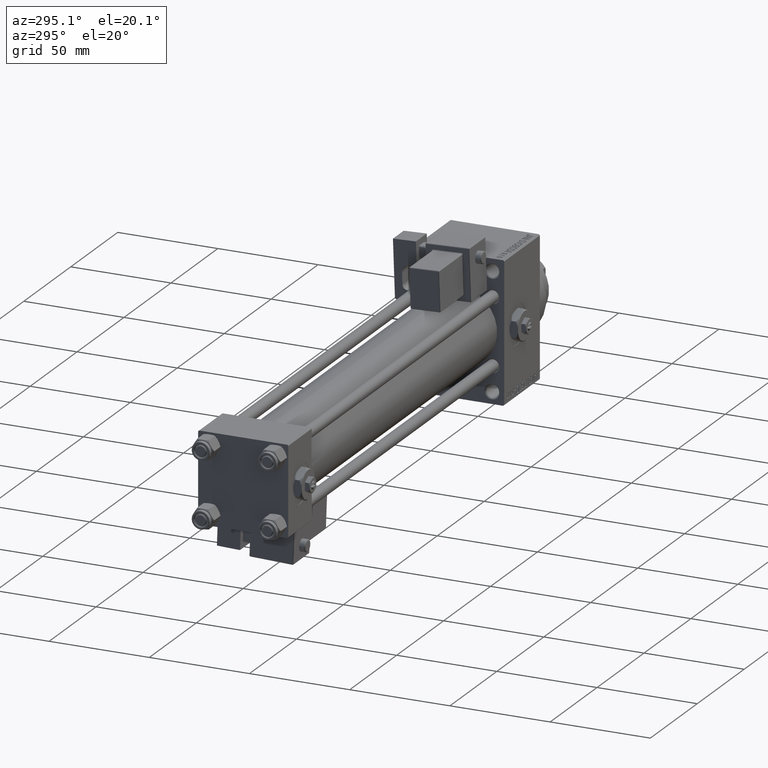
[diagram: clean part render]
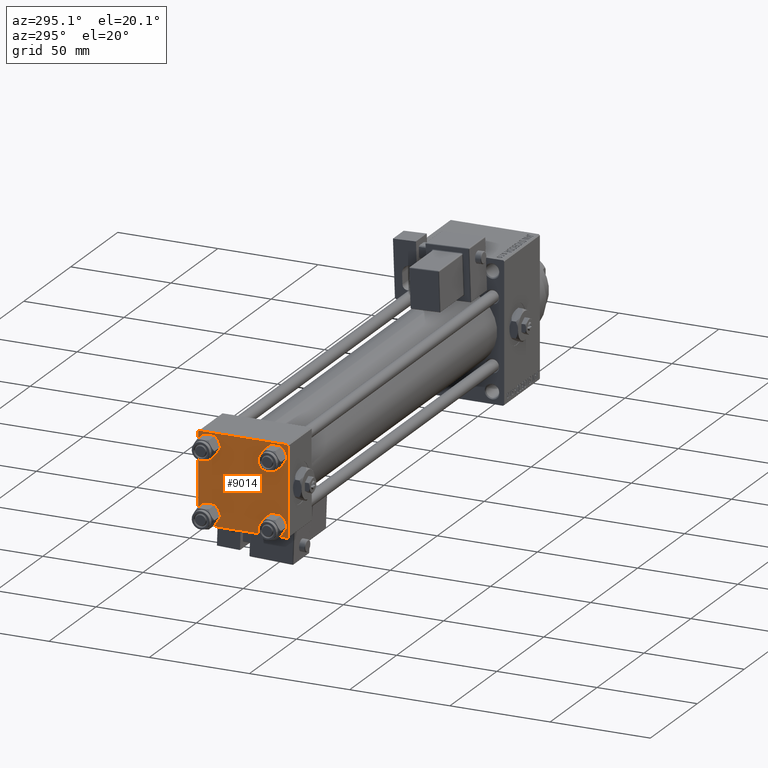
[diagram: same view with one face highlighted and labeled with its STEP entity id]
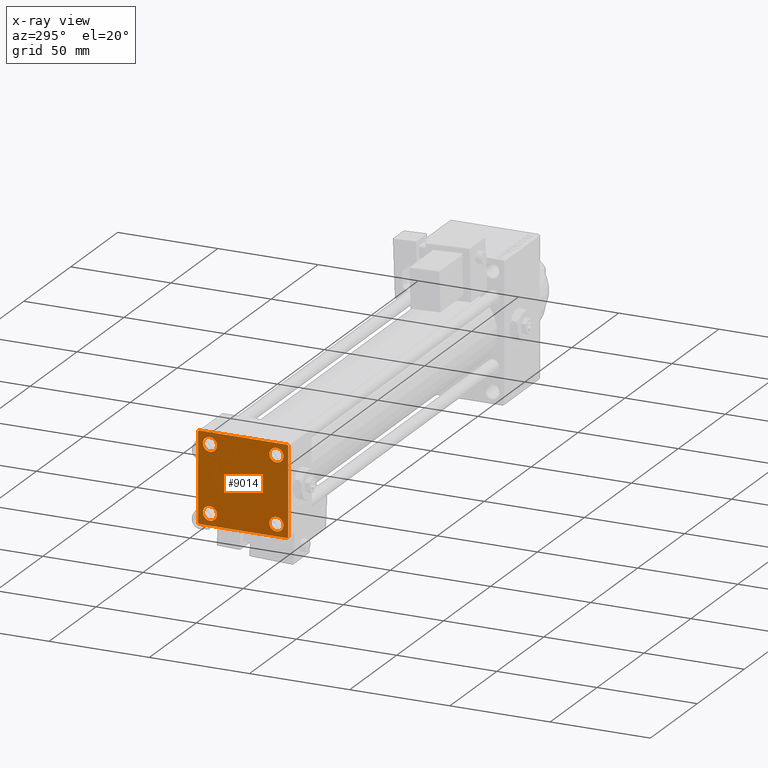
[diagram: x-ray of the same camera — body ghosted, the highlighted face saturated]
A machine part, auxiliary view. The second image highlights one B-rep face of the part: STEP entity #9014.
The next image is the same camera in x-ray: the body ghosted, the highlighted face saturated — about 0% of this face is hidden behind the body in this view.
In plain terms, the highlighted planar face has unit normal (-1, 0, 0).
Its self-contained STEP definition (entity closure, byte-faithful):
#105 = ORIENTED_EDGE ( 'NONE', *, *, #219, .T. ) ;
#219 = EDGE_CURVE ( 'NONE', #27653, #13426, #1496, .T. ) ;
#357 = ORIENTED_EDGE ( 'NONE', *, *, #3979, .T. ) ;
#562 = FACE_BOUND ( 'NONE', #29050, .T. ) ;
#1435 = CARTESIAN_POINT ( 'NONE',  ( 0.000000000000000000, -22.50000000000000000, 22.00000000000000000 ) ) ;
#1496 = LINE ( 'NONE', #40235, #4959 ) ;
#3425 = DIRECTION ( 'NONE',  ( 0.000000000000000000, 0.000000000000000000, -1.000000000000000000 ) ) ;
#3808 = EDGE_LOOP ( 'NONE', ( #26989, #26107, #105, #15482, #46088, #23484, #26953, #4589 ) ) ;
#3818 = DIRECTION ( 'NONE',  ( 1.000000000000000000, -0.000000000000000000, 0.000000000000000000 ) ) ;
#3918 = EDGE_CURVE ( 'NONE', #28842, #23744, #42334, .T. ) ;
#3979 = EDGE_CURVE ( 'NONE', #43567, #22849, #49771, .T. ) ;
#4202 = FACE_BOUND ( 'NONE', #45123, .T. ) ;
#4589 = ORIENTED_EDGE ( 'NONE', *, *, #11175, .T. ) ;
#4619 = EDGE_CURVE ( 'NONE', #20673, #40719, #13460, .T. ) ;
#4959 = VECTOR ( 'NONE', #9565, 1000.000000000000000 ) ;
#5241 = CARTESIAN_POINT ( 'NONE',  ( 0.000000000000000000, -16.59999999999999076, -20.10000000000000497 ) ) ;
#5297 = VERTEX_POINT ( 'NONE', #28765 ) ;
#5836 = EDGE_CURVE ( 'NONE', #22849, #43567, #21644, .T. ) ;
#6372 = CARTESIAN_POINT ( 'NONE',  ( 0.000000000000000000, 16.59999999999999787, 16.60000000000000497 ) ) ;
#6879 = ORIENTED_EDGE ( 'NONE', *, *, #29994, .T. ) ;
#7714 = CIRCLE ( 'NONE', #16011, 3.499999999999996003 ) ;
#7964 = ORIENTED_EDGE ( 'NONE', *, *, #44602, .T. ) ;
#7984 = DIRECTION ( 'NONE',  ( 1.000000000000000000, -0.000000000000000000, 0.000000000000000000 ) ) ;
#8875 = CARTESIAN_POINT ( 'NONE',  ( 0.000000000000000000, -22.50000000000000000, 22.50000000000000000 ) ) ;
#8923 = DIRECTION ( 'NONE',  ( 1.000000000000000000, -0.000000000000000000, 0.000000000000000000 ) ) ;
#9014 = ADVANCED_FACE ( 'NONE', ( #562, #4202, #44445, #23708, #24465 ), #24213, .T. ) ;
#9160 = VERTEX_POINT ( 'NONE', #18187 ) ;
#9565 = DIRECTION ( 'NONE',  ( 0.000000000000000000, -1.000000000000000000, -2.312964634635742957E-16 ) ) ;
#9665 = ORIENTED_EDGE ( 'NONE', *, *, #29787, .T. ) ;
#9762 = EDGE_LOOP ( 'NONE', ( #33092, #7964 ) ) ;
#10102 = CARTESIAN_POINT ( 'NONE',  ( 0.000000000000000000, -16.59999999999999076, -16.60000000000000853 ) ) ;
#10223 = DIRECTION ( 'NONE',  ( -0.000000000000000000, -0.7071067811865426878, -0.7071067811865524577 ) ) ;
#10242 = CARTESIAN_POINT ( 'NONE',  ( 0.000000000000000000, 22.50000000000000000, 21.99999999999999645 ) ) ;
#10783 = VERTEX_POINT ( 'NONE', #10242 ) ;
#10902 = EDGE_CURVE ( 'NONE', #42034, #5297, #7714, .T. ) ;
#11175 = EDGE_CURVE ( 'NONE', #30202, #10783, #27833, .T. ) ;
#11221 = CARTESIAN_POINT ( 'NONE',  ( 0.000000000000000000, 21.99999999999999289, 22.50000000000000355 ) ) ;
#13323 = CARTESIAN_POINT ( 'NONE',  ( 0.000000000000000000, -16.59999999999999076, 16.60000000000000853 ) ) ;
#13426 = VERTEX_POINT ( 'NONE', #49749 ) ;
#13460 = LINE ( 'NONE', #30098, #32378 ) ;
#14418 = DIRECTION ( 'NONE',  ( 1.000000000000000000, -0.000000000000000000, 0.000000000000000000 ) ) ;
#14642 = CARTESIAN_POINT ( 'NONE',  ( 0.000000000000000000, 16.59999999999999787, -20.10000000000000142 ) ) ;
#15121 = CARTESIAN_POINT ( 'NONE',  ( 0.000000000000000000, 22.50000000000000000, 22.50000000000000355 ) ) ;
#15482 = ORIENTED_EDGE ( 'NONE', *, *, #48018, .T. ) ;
#15664 = AXIS2_PLACEMENT_3D ( 'NONE', #27477, #3818, #51320 ) ;
#15759 = VERTEX_POINT ( 'NONE', #30003 ) ;
#16011 = AXIS2_PLACEMENT_3D ( 'NONE', #27122, #50968, #26866 ) ;
#16154 = DIRECTION ( 'NONE',  ( -0.000000000000000000, 0.000000000000000000, 1.000000000000000000 ) ) ;
#16713 = CARTESIAN_POINT ( 'NONE',  ( 0.000000000000000000, -16.59999999999999076, 16.60000000000000853 ) ) ;
#16767 = EDGE_LOOP ( 'NONE', ( #9665, #37246 ) ) ;
#17701 = CIRCLE ( 'NONE', #49216, 3.499999999999996003 ) ;
#18048 = DIRECTION ( 'NONE',  ( 0.000000000000000000, 0.000000000000000000, 1.000000000000000000 ) ) ;
#18187 = CARTESIAN_POINT ( 'NONE',  ( 0.000000000000000000, 16.59999999999999787, -13.10000000000000675 ) ) ;
#19271 = LINE ( 'NONE', #15121, #46916 ) ;
#19764 = CARTESIAN_POINT ( 'NONE',  ( 0.000000000000000000, 22.24999999999999645, 22.24999999999999645 ) ) ;
#19850 = DIRECTION ( 'NONE',  ( 0.000000000000000000, 0.000000000000000000, 1.000000000000000000 ) ) ;
#19904 = VECTOR ( 'NONE', #23955, 1000.000000000000000 ) ;
#19933 = CARTESIAN_POINT ( 'NONE',  ( 0.000000000000000000, 22.50000000000000000, 22.50000000000000355 ) ) ;
#20180 = DIRECTION ( 'NONE',  ( 0.000000000000000000, 0.000000000000000000, 1.000000000000000000 ) ) ;
#20673 = VERTEX_POINT ( 'NONE', #1435 ) ;
#20752 = AXIS2_PLACEMENT_3D ( 'NONE', #13323, #45003, #20180 ) ;
#21046 = AXIS2_PLACEMENT_3D ( 'NONE', #16713, #8923, #19850 ) ;
#21644 = CIRCLE ( 'NONE', #44001, 3.499999999999996003 ) ;
#22235 = CARTESIAN_POINT ( 'NONE',  ( 0.000000000000000000, 21.99999999999999289, -22.49999999999999645 ) ) ;
#22336 = VECTOR ( 'NONE', #45035, 1000.000000000000000 ) ;
#22849 = VERTEX_POINT ( 'NONE', #5241 ) ;
#23484 = ORIENTED_EDGE ( 'NONE', *, *, #4619, .T. ) ;
#23708 = FACE_BOUND ( 'NONE', #16767, .T. ) ;
#23712 = CARTESIAN_POINT ( 'NONE',  ( 0.000000000000000000, -16.59999999999999076, 13.10000000000001030 ) ) ;
#23744 = VERTEX_POINT ( 'NONE', #23712 ) ;
#23955 = DIRECTION ( 'NONE',  ( 0.000000000000000000, 0.000000000000000000, -1.000000000000000000 ) ) ;
#24213 = PLANE ( 'NONE',  #37514 ) ;
#24425 = EDGE_CURVE ( 'NONE', #15759, #27653, #41385, .T. ) ;
#24465 = FACE_OUTER_BOUND ( 'NONE', #3808, .T. ) ;
#25960 = DIRECTION ( 'NONE',  ( 1.000000000000000000, -0.000000000000000000, 0.000000000000000000 ) ) ;
#26090 = CARTESIAN_POINT ( 'NONE',  ( 0.000000000000000000, -16.59999999999999076, 20.10000000000000853 ) ) ;
#26107 = ORIENTED_EDGE ( 'NONE', *, *, #24425, .T. ) ;
#26866 = DIRECTION ( 'NONE',  ( 0.000000000000000000, 0.000000000000000000, 1.000000000000000000 ) ) ;
#26953 = ORIENTED_EDGE ( 'NONE', *, *, #31814, .F. ) ;
#26989 = ORIENTED_EDGE ( 'NONE', *, *, #37482, .T. ) ;
#27122 = CARTESIAN_POINT ( 'NONE',  ( 0.000000000000000000, 16.59999999999999787, 16.60000000000000497 ) ) ;
#27477 = CARTESIAN_POINT ( 'NONE',  ( 0.000000000000000000, 16.59999999999999787, -16.60000000000000497 ) ) ;
#27653 = VERTEX_POINT ( 'NONE', #22235 ) ;
#27833 = LINE ( 'NONE', #19764, #35153 ) ;
#28307 = VECTOR ( 'NONE', #10223, 1000.000000000000000 ) ;
#28765 = CARTESIAN_POINT ( 'NONE',  ( 0.000000000000000000, 16.59999999999999787, 20.10000000000000142 ) ) ;
#28842 = VERTEX_POINT ( 'NONE', #26090 ) ;
#29050 = EDGE_LOOP ( 'NONE', ( #49447, #6879 ) ) ;
#29787 = EDGE_CURVE ( 'NONE', #5297, #42034, #17701, .T. ) ;
#29994 = EDGE_CURVE ( 'NONE', #23744, #28842, #31015, .T. ) ;
#30003 = CARTESIAN_POINT ( 'NONE',  ( 0.000000000000000000, 22.50000000000000000, -21.99999999999996803 ) ) ;
#30098 = CARTESIAN_POINT ( 'NONE',  ( -0.000000000000000000, -22.24999999999984013, 22.25000000000015277 ) ) ;
#30202 = VERTEX_POINT ( 'NONE', #11221 ) ;
#30480 = CARTESIAN_POINT ( 'NONE',  ( 0.000000000000000000, -16.59999999999999076, -13.10000000000001030 ) ) ;
#30701 = DIRECTION ( 'NONE',  ( 0.000000000000000000, 0.7071067811865474617, -0.7071067811865474617 ) ) ;
#31015 = CIRCLE ( 'NONE', #21046, 3.499999999999996003 ) ;
#31088 = ORIENTED_EDGE ( 'NONE', *, *, #5836, .T. ) ;
#31814 = EDGE_CURVE ( 'NONE', #30202, #40719, #47706, .T. ) ;
#32207 = CARTESIAN_POINT ( 'NONE',  ( 0.000000000000000000, -22.50000000000000000, -21.99999999999997158 ) ) ;
#32378 = VECTOR ( 'NONE', #50058, 999.9999999999998863 ) ;
#33092 = ORIENTED_EDGE ( 'NONE', *, *, #40348, .T. ) ;
#35153 = VECTOR ( 'NONE', #30701, 1000.000000000000114 ) ;
#35906 = LINE ( 'NONE', #8875, #19904 ) ;
#36257 = CIRCLE ( 'NONE', #37102, 3.499999999999996003 ) ;
#37102 = AXIS2_PLACEMENT_3D ( 'NONE', #45685, #45947, #50087 ) ;
#37246 = ORIENTED_EDGE ( 'NONE', *, *, #10902, .T. ) ;
#37482 = EDGE_CURVE ( 'NONE', #10783, #15759, #19271, .T. ) ;
#37514 = AXIS2_PLACEMENT_3D ( 'NONE', #48079, #40556, #16154 ) ;
#38691 = VERTEX_POINT ( 'NONE', #14642 ) ;
#39164 = DIRECTION ( 'NONE',  ( 0.000000000000000000, -1.000000000000000000, -7.709882115452476934E-17 ) ) ;
#40235 = CARTESIAN_POINT ( 'NONE',  ( 0.000000000000000000, 22.50000000000000000, -22.49999999999999645 ) ) ;
#40348 = EDGE_CURVE ( 'NONE', #9160, #38691, #36257, .T. ) ;
#40545 = CIRCLE ( 'NONE', #15664, 3.499999999999996003 ) ;
#40556 = DIRECTION ( 'NONE',  ( -1.000000000000000000, 0.000000000000000000, -0.000000000000000000 ) ) ;
#40647 = LINE ( 'NONE', #40902, #22336 ) ;
#40672 = AXIS2_PLACEMENT_3D ( 'NONE', #47696, #7984, #43306 ) ;
#40719 = VERTEX_POINT ( 'NONE', #50527 ) ;
#40902 = CARTESIAN_POINT ( 'NONE',  ( 0.000000000000000000, -22.25000000000014566, -22.24999999999984013 ) ) ;
#41033 = VECTOR ( 'NONE', #39164, 1000.000000000000000 ) ;
#41385 = LINE ( 'NONE', #42417, #28307 ) ;
#42034 = VERTEX_POINT ( 'NONE', #45633 ) ;
#42334 = CIRCLE ( 'NONE', #20752, 3.499999999999996003 ) ;
#42417 = CARTESIAN_POINT ( 'NONE',  ( 0.000000000000000000, 22.25000000000014566, -22.24999999999984013 ) ) ;
#43306 = DIRECTION ( 'NONE',  ( 0.000000000000000000, 0.000000000000000000, 1.000000000000000000 ) ) ;
#43567 = VERTEX_POINT ( 'NONE', #30480 ) ;
#44001 = AXIS2_PLACEMENT_3D ( 'NONE', #10102, #25960, #45151 ) ;
#44445 = FACE_BOUND ( 'NONE', #9762, .T. ) ;
#44602 = EDGE_CURVE ( 'NONE', #38691, #9160, #40545, .T. ) ;
#45003 = DIRECTION ( 'NONE',  ( 1.000000000000000000, -0.000000000000000000, 0.000000000000000000 ) ) ;
#45035 = DIRECTION ( 'NONE',  ( 0.000000000000000000, -0.7071067811865426878, 0.7071067811865524577 ) ) ;
#45123 = EDGE_LOOP ( 'NONE', ( #357, #31088 ) ) ;
#45140 = VERTEX_POINT ( 'NONE', #32207 ) ;
#45151 = DIRECTION ( 'NONE',  ( 0.000000000000000000, 0.000000000000000000, 1.000000000000000000 ) ) ;
#45633 = CARTESIAN_POINT ( 'NONE',  ( 0.000000000000000000, 16.59999999999999787, 13.10000000000000675 ) ) ;
#45685 = CARTESIAN_POINT ( 'NONE',  ( 0.000000000000000000, 16.59999999999999787, -16.60000000000000497 ) ) ;
#45947 = DIRECTION ( 'NONE',  ( 1.000000000000000000, -0.000000000000000000, 0.000000000000000000 ) ) ;
#46088 = ORIENTED_EDGE ( 'NONE', *, *, #50061, .F. ) ;
#46916 = VECTOR ( 'NONE', #3425, 1000.000000000000000 ) ;
#47696 = CARTESIAN_POINT ( 'NONE',  ( 0.000000000000000000, -16.59999999999999076, -16.60000000000000853 ) ) ;
#47706 = LINE ( 'NONE', #19933, #41033 ) ;
#48018 = EDGE_CURVE ( 'NONE', #13426, #45140, #40647, .T. ) ;
#48079 = CARTESIAN_POINT ( 'NONE',  ( 0.000000000000000000, 0.000000000000000000, 0.000000000000000000 ) ) ;
#49216 = AXIS2_PLACEMENT_3D ( 'NONE', #6372, #14418, #18048 ) ;
#49447 = ORIENTED_EDGE ( 'NONE', *, *, #3918, .T. ) ;
#49749 = CARTESIAN_POINT ( 'NONE',  ( 0.000000000000000000, -21.99999999999997158, -22.50000000000000711 ) ) ;
#49771 = CIRCLE ( 'NONE', #40672, 3.499999999999996003 ) ;
#50058 = DIRECTION ( 'NONE',  ( -0.000000000000000000, 0.7071067811865525687, 0.7071067811865425767 ) ) ;
#50061 = EDGE_CURVE ( 'NONE', #20673, #45140, #35906, .T. ) ;
#50087 = DIRECTION ( 'NONE',  ( 0.000000000000000000, 0.000000000000000000, 1.000000000000000000 ) ) ;
#50527 = CARTESIAN_POINT ( 'NONE',  ( 0.000000000000000000, -21.99999999999997868, 22.50000000000000000 ) ) ;
#50968 = DIRECTION ( 'NONE',  ( 1.000000000000000000, -0.000000000000000000, 0.000000000000000000 ) ) ;
#51320 = DIRECTION ( 'NONE',  ( 0.000000000000000000, 0.000000000000000000, 1.000000000000000000 ) ) ;